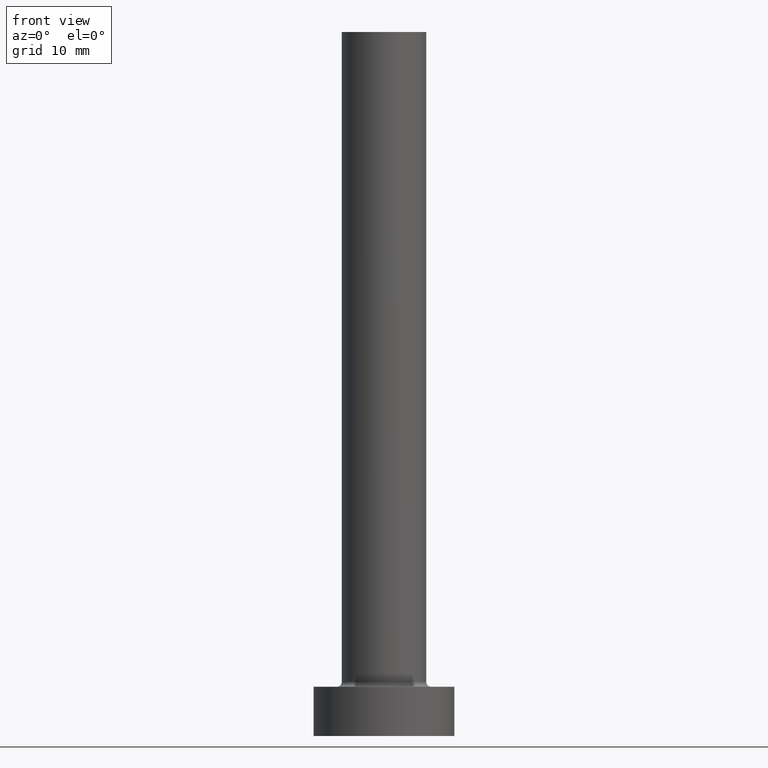
[diagram: clean part render]
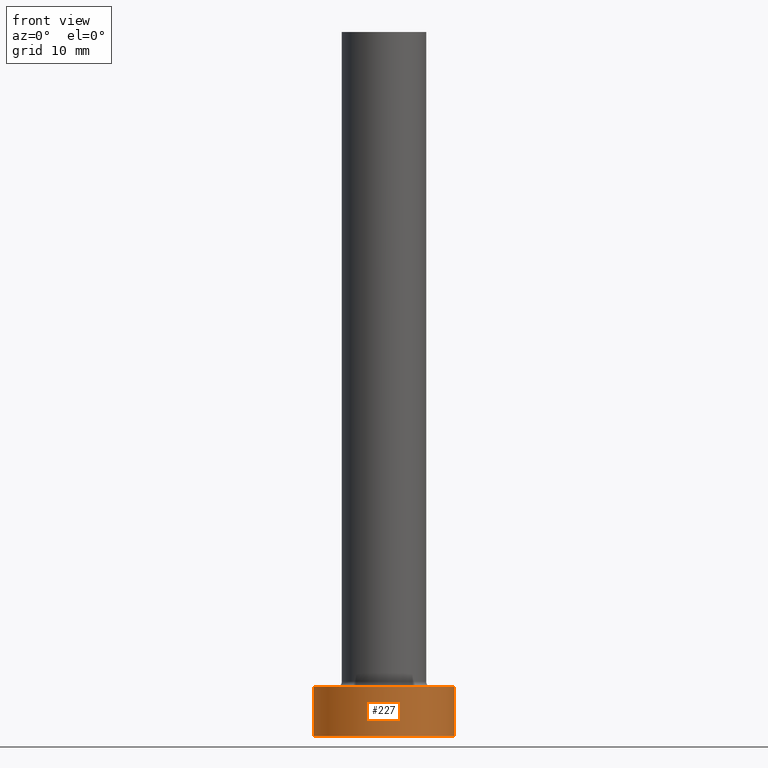
[diagram: same view with one face highlighted and labeled with its STEP entity id]
A machine part, front view. The second image highlights one B-rep face of the part: STEP entity #227.
In plain terms, the highlighted cylindrical surface (partial cylindrical patch) has radius 10 mm, axis along (-0, -0, -1).
Its self-contained STEP definition (entity closure, byte-faithful):
#7 = LINE ( 'NONE', #49, #86 ) ;
#19 = EDGE_CURVE ( 'NONE', #180, #247, #112, .T. ) ;
#34 = CARTESIAN_POINT ( 'NONE',  ( -10.00000000000000000, 0.000000000000000000, 7.000000000000000000 ) ) ;
#36 = DIRECTION ( 'NONE',  ( -0.000000000000000000, -0.000000000000000000, -1.000000000000000000 ) ) ;
#49 = CARTESIAN_POINT ( 'NONE',  ( 10.00000000000000000, 1.224646799147353256E-15, 7.000000000000000000 ) ) ;
#50 = CIRCLE ( 'NONE', #330, 10.00000000000000000 ) ;
#56 = CYLINDRICAL_SURFACE ( 'NONE', #288, 10.00000000000000000 ) ;
#77 = EDGE_CURVE ( 'NONE', #180, #409, #352, .T. ) ;
#86 = VECTOR ( 'NONE', #300, 1000.000000000000000 ) ;
#87 = DIRECTION ( 'NONE',  ( -1.000000000000000000, 0.000000000000000000, 0.000000000000000000 ) ) ;
#92 = CARTESIAN_POINT ( 'NONE',  ( 10.00000000000000000, 1.224646799147353256E-15, 0.000000000000000000 ) ) ;
#112 = LINE ( 'NONE', #34, #354 ) ;
#122 = DIRECTION ( 'NONE',  ( 0.000000000000000000, 0.000000000000000000, 1.000000000000000000 ) ) ;
#156 = DIRECTION ( 'NONE',  ( 1.000000000000000000, 0.000000000000000000, 0.000000000000000000 ) ) ;
#168 = CARTESIAN_POINT ( 'NONE',  ( -10.00000000000000000, 0.000000000000000000, 0.000000000000000000 ) ) ;
#169 = FACE_OUTER_BOUND ( 'NONE', #177, .T. ) ;
#174 = ORIENTED_EDGE ( 'NONE', *, *, #19, .T. ) ;
#177 = EDGE_LOOP ( 'NONE', ( #316, #329, #174, #359 ) ) ;
#180 = VERTEX_POINT ( 'NONE', #194 ) ;
#194 = CARTESIAN_POINT ( 'NONE',  ( -10.00000000000000000, 0.000000000000000000, 7.000000000000000000 ) ) ;
#225 = EDGE_CURVE ( 'NONE', #409, #456, #7, .T. ) ;
#227 = ADVANCED_FACE ( 'NONE', ( #169 ), #56, .T. ) ;
#247 = VERTEX_POINT ( 'NONE', #168 ) ;
#256 = DIRECTION ( 'NONE',  ( 0.000000000000000000, 0.000000000000000000, 1.000000000000000000 ) ) ;
#266 = CARTESIAN_POINT ( 'NONE',  ( 0.000000000000000000, 0.000000000000000000, 0.000000000000000000 ) ) ;
#288 = AXIS2_PLACEMENT_3D ( 'NONE', #446, #313, #87 ) ;
#292 = AXIS2_PLACEMENT_3D ( 'NONE', #461, #256, #156 ) ;
#300 = DIRECTION ( 'NONE',  ( -0.000000000000000000, -0.000000000000000000, -1.000000000000000000 ) ) ;
#313 = DIRECTION ( 'NONE',  ( -0.000000000000000000, -0.000000000000000000, -1.000000000000000000 ) ) ;
#316 = ORIENTED_EDGE ( 'NONE', *, *, #225, .F. ) ;
#329 = ORIENTED_EDGE ( 'NONE', *, *, #77, .F. ) ;
#330 = AXIS2_PLACEMENT_3D ( 'NONE', #266, #122, #349 ) ;
#349 = DIRECTION ( 'NONE',  ( 1.000000000000000000, 0.000000000000000000, 0.000000000000000000 ) ) ;
#352 = CIRCLE ( 'NONE', #292, 10.00000000000000000 ) ;
#354 = VECTOR ( 'NONE', #36, 1000.000000000000000 ) ;
#359 = ORIENTED_EDGE ( 'NONE', *, *, #361, .T. ) ;
#361 = EDGE_CURVE ( 'NONE', #247, #456, #50, .T. ) ;
#377 = CARTESIAN_POINT ( 'NONE',  ( 10.00000000000000000, 1.224646799147353256E-15, 7.000000000000000000 ) ) ;
#409 = VERTEX_POINT ( 'NONE', #377 ) ;
#446 = CARTESIAN_POINT ( 'NONE',  ( 0.000000000000000000, 0.000000000000000000, 7.000000000000000000 ) ) ;
#456 = VERTEX_POINT ( 'NONE', #92 ) ;
#461 = CARTESIAN_POINT ( 'NONE',  ( 0.000000000000000000, 0.000000000000000000, 7.000000000000000000 ) ) ;